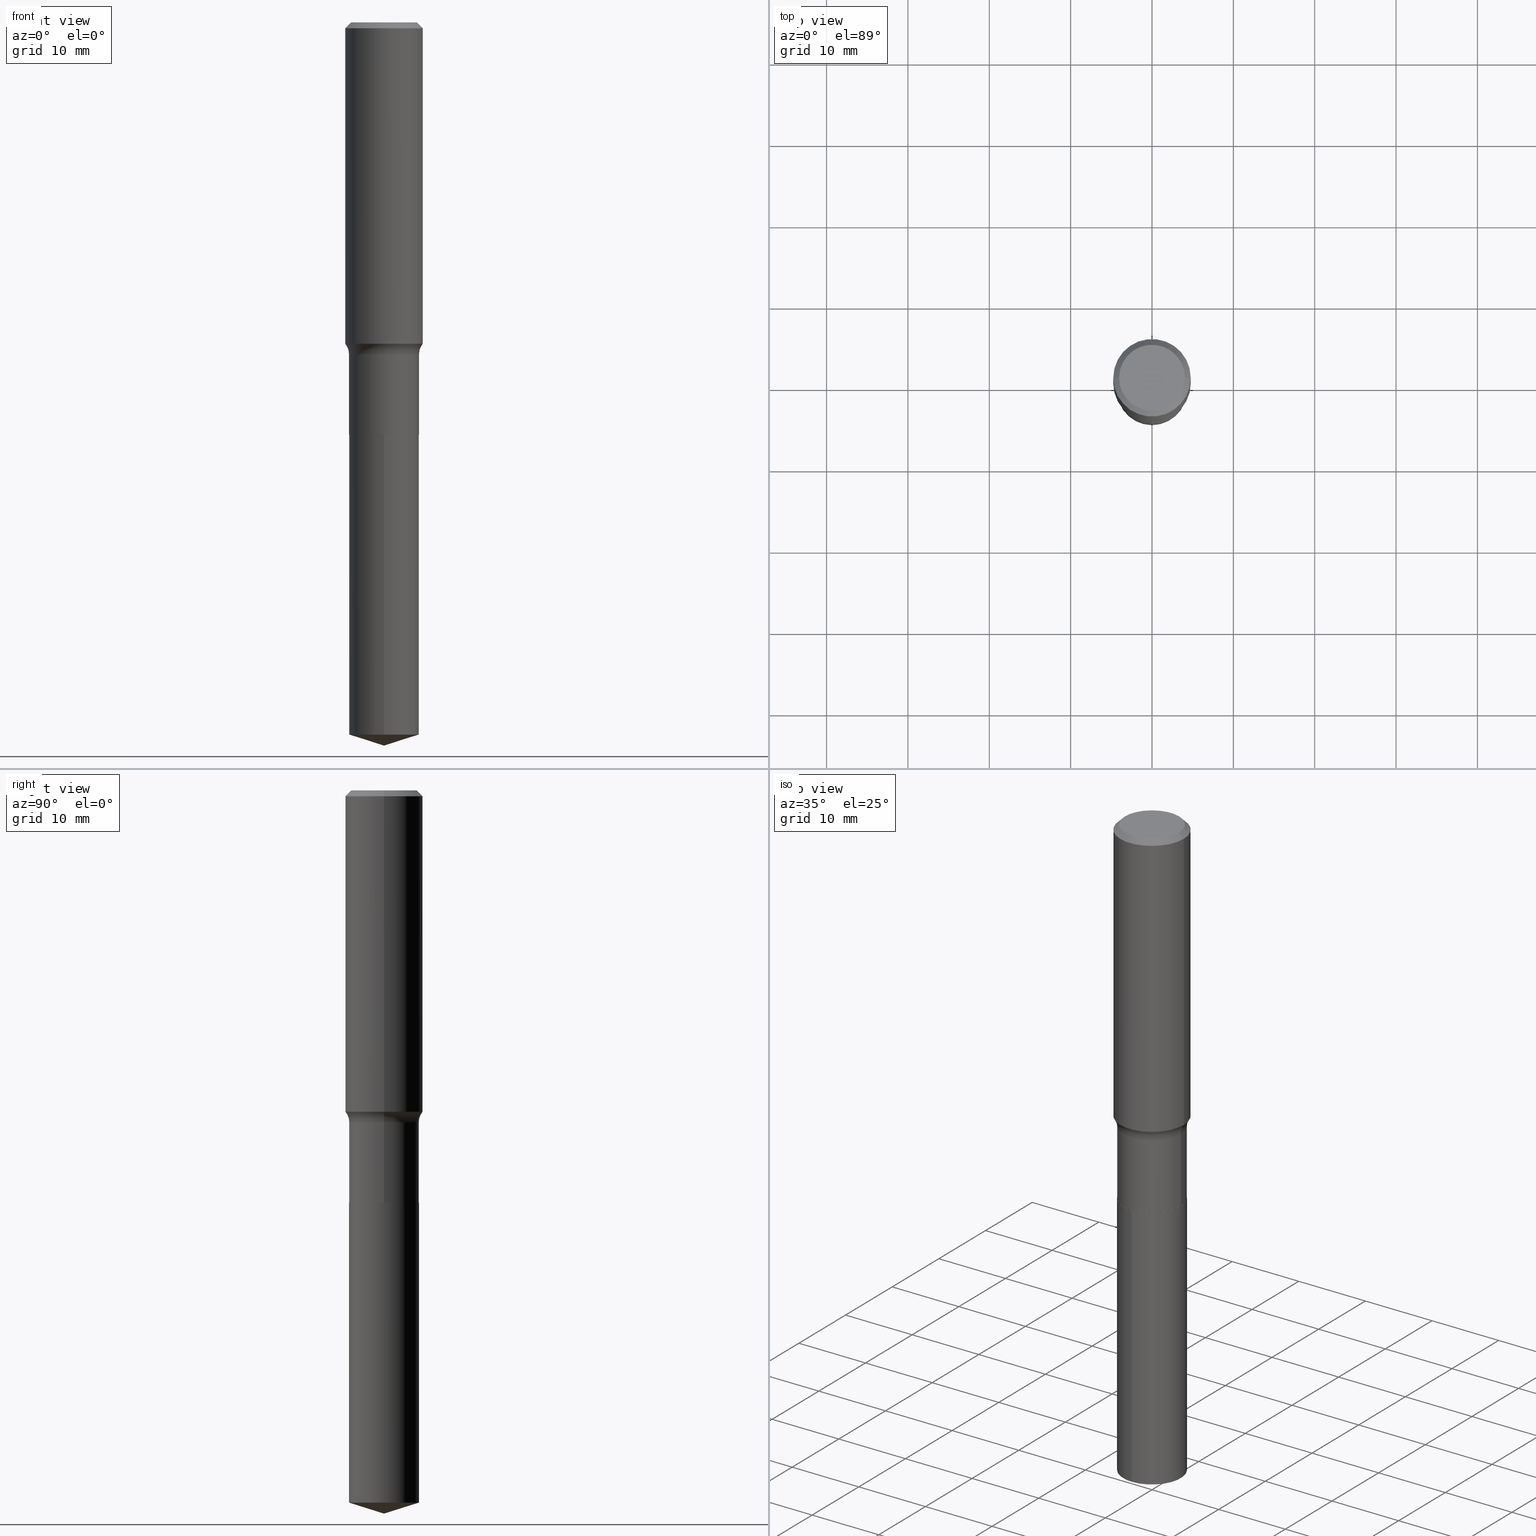
[diagram: canonical four-view strip — front | top / right | iso, engineering-drawing reading convention]
A machine part, canonical four-view strip (front | top / right | iso — engineering-drawing reading convention). The complete STEP part file that produces these views, byte-faithful:
ISO-10303-21;
HEADER;
FILE_DESCRIPTION (( 'STEP AP203' ),
    '1' );
FILE_NAME ('51615.STEP',
    '2024-04-19T13:11:08',
    ( '' ),
    ( '' ),
    'SwSTEP 2.0',
    'SolidWorks 2023',
    '' );
FILE_SCHEMA (( 'CONFIG_CONTROL_DESIGN' ));
ENDSEC;

DATA;
#1 = CARTESIAN_POINT ( 'NONE',  ( 3.803829537320122674E-29, -5.430860460007894106E-15, -1.555460256822491116 ) ) ;
#2 = EDGE_CURVE ( 'NONE', #140, #462, #276, .T. ) ;
#3 = DIRECTION ( 'NONE',  ( 1.000000000000000000, -6.982962677686264344E-15, 0.000000000000000000 ) ) ;
#4 = CARTESIAN_POINT ( 'NONE',  ( 0.2474999999999999423, -7.333158255972251092E-15, -1.605299999999999727 ) ) ;
#5 = CC_DESIGN_SECURITY_CLASSIFICATION ( #161, ( #416 ) ) ;
#6 = ORIENTED_EDGE ( 'NONE', *, *, #2, .F. ) ;
#7 = ADVANCED_FACE ( 'NONE', ( #136 ), #286, .T. ) ;
#8 = CARTESIAN_POINT ( 'NONE',  ( 4.879199362100584429E-29, -6.966203567259843153E-15, -1.995199999999999863 ) ) ;
#9 = CARTESIAN_POINT ( 'NONE',  ( 0.1694999999999999840, -8.148070000458243668E-15, -1.994699999999999918 ) ) ;
#10 = ORIENTED_EDGE ( 'NONE', *, *, #74, .F. ) ;
#11 = DIRECTION ( 'NONE',  ( -2.445235242980929493E-29, 3.491815814645162055E-15, 1.000000000000000000 ) ) ;
#12 = AXIS2_PLACEMENT_3D ( 'NONE', #57, #13, #393 ) ;
#13 = DIRECTION ( 'NONE',  ( -2.445468806185136597E-29, 3.491481338843145583E-15, 1.000000000000000000 ) ) ;
#14 = ORIENTED_EDGE ( 'NONE', *, *, #321, .T. ) ;
#15 = EDGE_CURVE ( 'NONE', #315, #23, #280, .T. ) ;
#16 = APPLICATION_PROTOCOL_DEFINITION ( 'international standard', 'config_control_design', 1994, #69 ) ;
#17 = ORIENTED_EDGE ( 'NONE', *, *, #21, .F. ) ;
#18 = EDGE_CURVE ( 'NONE', #23, #283, #263, .T. ) ;
#19 = ORIENTED_EDGE ( 'NONE', *, *, #107, .F. ) ;
#20 = CIRCLE ( 'NONE', #160, 0.1694999999999999563 ) ;
#21 = EDGE_CURVE ( 'NONE', #166, #114, #42, .T. ) ;
#22 =( NAMED_UNIT ( * ) SI_UNIT ( $, .STERADIAN. ) SOLID_ANGLE_UNIT ( ) );
#23 = VERTEX_POINT ( 'NONE', #467 ) ;
#24 = DIRECTION ( 'NONE',  ( -2.445468806185136597E-29, 3.491481338843145583E-15, 1.000000000000000000 ) ) ;
#25 = PERSON_AND_ORGANIZATION ( #359, #264 ) ;
#26 = DIRECTION ( 'NONE',  ( 0.7071067811865457964, -7.319954787623249734E-15, -0.7071067811865492381 ) ) ;
#27 = APPLICATION_PROTOCOL_DEFINITION ( 'international standard', 'config_control_design', 1994, #423 ) ;
#28 = CARTESIAN_POINT ( 'NONE',  ( -0.1875000000000001943, -4.098592830457705468E-15, -1.555460256822491116 ) ) ;
#29 = EDGE_CURVE ( 'NONE', #140, #23, #426, .T. ) ;
#30 = COORDINATED_UNIVERSAL_TIME_OFFSET ( 5, 0, .BEHIND. ) ;
#31 = CYLINDRICAL_SURFACE ( 'NONE', #170, 0.1694999999999999840 ) ;
#32 = ORIENTED_EDGE ( 'NONE', *, *, #364, .F. ) ;
#33 = COORDINATED_UNIVERSAL_TIME_OFFSET ( 5, 0, .BEHIND. ) ;
#34 = CARTESIAN_POINT ( 'NONE',  ( 4.879199362100584429E-29, -6.966203567259843153E-15, -1.995199999999999863 ) ) ;
#35 = ORIENTED_EDGE ( 'NONE', *, *, #223, .F. ) ;
#36 = AXIS2_PLACEMENT_3D ( 'NONE', #67, #258, #331 ) ;
#37 = CIRCLE ( 'NONE', #369, 0.1694999999999999563 ) ;
#38 = DIRECTION ( 'NONE',  ( -2.445468806185136877E-29, 3.491481338843145188E-15, 1.000000000000000000 ) ) ;
#39 = DIRECTION ( 'NONE',  ( 1.000000000000000000, -6.982962677686264344E-15, 0.000000000000000000 ) ) ;
#40 = DIRECTION ( 'NONE',  ( -6.982962677686266711E-15, -1.000000000000000000, 3.491481338843145583E-15 ) ) ;
#41 = EDGE_CURVE ( 'NONE', #349, #462, #20, .T. ) ;
#42 = CIRCLE ( 'NONE', #91, 0.1694999999999999840 ) ;
#43 = CARTESIAN_POINT ( 'NONE',  ( 8.428108294785469424E-29, -1.203407438723772024E-14, -3.446556855285012322 ) ) ;
#44 = APPROVAL_PERSON_ORGANIZATION ( #404, #299, #401 ) ;
#45 = ORIENTED_EDGE ( 'NONE', *, *, #409, .T. ) ;
#46 = DIRECTION ( 'NONE',  ( 1.000000000000000000, -6.982962677686264344E-15, 0.000000000000000000 ) ) ;
#47 = ORIENTED_EDGE ( 'NONE', *, *, #74, .T. ) ;
#48 = EDGE_CURVE ( 'NONE', #166, #372, #442, .T. ) ;
#49 = CARTESIAN_POINT ( 'NONE',  ( 4.879199362100584429E-29, -6.966203567259843153E-15, -1.995199999999999863 ) ) ;
#50 = DIRECTION ( 'NONE',  ( 1.000000000000000000, -6.982962677686264344E-15, 0.000000000000000000 ) ) ;
#51 = AXIS2_PLACEMENT_3D ( 'NONE', #309, #162, #230 ) ;
#52 = ORIENTED_EDGE ( 'NONE', *, *, #385, .T. ) ;
#53 = CC_DESIGN_APPROVAL ( #181, ( #416 ) ) ;
#54 = ORIENTED_EDGE ( 'NONE', *, *, #15, .T. ) ;
#55 = DIRECTION ( 'NONE',  ( -0.7071067811866199593, 7.493145998870616062E-15, 0.7071067811864750752 ) ) ;
#56 = ORIENTED_EDGE ( 'NONE', *, *, #29, .F. ) ;
#57 = CARTESIAN_POINT ( 'NONE',  ( 6.877881017395745374E-31, -9.819791265496414867E-17, -0.02812500000000019498 ) ) ;
#58 = CARTESIAN_POINT ( 'NONE',  ( 6.877881017395745374E-31, -9.819791265496414867E-17, -0.02812500000000019498 ) ) ;
#59 = CALENDAR_DATE ( 2024, 19, 4 ) ;
#60 = CARTESIAN_POINT ( 'NONE',  ( 0.1875000000000000555, -1.384541287237126871E-15, -0.02812500000000019498 ) ) ;
#61 = APPROVAL_STATUS ( 'not_yet_approved' ) ;
#62 = LINE ( 'NONE', #371, #429 ) ;
#63 = CARTESIAN_POINT ( 'NONE',  ( -7.955031918821655674E-47, 1.135767727816384611E-32, 3.252968060235159768E-18 ) ) ;
#64 = AXIS2_PLACEMENT_3D ( 'NONE', #156, #405, #328 ) ;
#65 = CIRCLE ( 'NONE', #449, 0.1694999999999999840 ) ;
#66 = COORDINATED_UNIVERSAL_TIME_OFFSET ( 5, 0, .BEHIND. ) ;
#67 = CARTESIAN_POINT ( 'NONE',  ( 3.925711074568998551E-29, -5.604874993244900239E-15, -1.605299999999999727 ) ) ;
#68 = ORIENTED_EDGE ( 'NONE', *, *, #18, .T. ) ;
#69 = APPLICATION_CONTEXT ( 'configuration controlled 3d designs of mechanical parts and assemblies' ) ;
#70 = DATE_TIME_ROLE ( 'creation_date' ) ;
#71 = DIRECTION ( 'NONE',  ( -2.445235242980929493E-29, 3.491815814645162055E-15, 1.000000000000000000 ) ) ;
#72 = CARTESIAN_POINT ( 'NONE',  ( 0.1875000000000001110, -1.309305502066175797E-15, 9.142831454617385217E-30 ) ) ;
#73 = AXIS2_PLACEMENT_3D ( 'NONE', #49, #435, #97 ) ;
#74 = EDGE_CURVE ( 'NONE', #410, #140, #307, .T. ) ;
#75 = CIRCLE ( 'NONE', #12, 0.1875000000000000555 ) ;
#76 = CARTESIAN_POINT ( 'NONE',  ( 4.879199362100584429E-29, -6.966203567259843153E-15, -1.995199999999999863 ) ) ;
#77 = CARTESIAN_POINT ( 'NONE',  ( -8.771031469862902638E-28, 1.252523755635692779E-13, 35.87007874015748143 ) ) ;
#78 = CARTESIAN_POINT ( 'NONE',  ( 0.1875000000000000555, -1.407503414721139514E-15, -0.02812500000000019498 ) ) ;
#79 = UNCERTAINTY_MEASURE_WITH_UNIT (LENGTH_MEASURE( 1.000000000000000082E-05 ), #471, 'distance_accuracy_value', 'NONE');
#80 = EDGE_LOOP ( 'NONE', ( #237, #475, #436, #124 ) ) ;
#81 = AXIS2_PLACEMENT_3D ( 'NONE', #456, #420, #454 ) ;
#82 = DIRECTION ( 'NONE',  ( 1.000000000000000000, -6.982962677686274599E-15, 0.000000000000000000 ) ) ;
#83 = AXIS2_PLACEMENT_3D ( 'NONE', #76, #347, #343 ) ;
#84 = ORIENTED_EDGE ( 'NONE', *, *, #128, .T. ) ;
#85 = ORIENTED_EDGE ( 'NONE', *, *, #281, .T. ) ;
#86 = EDGE_CURVE ( 'NONE', #451, #462, #62, .T. ) ;
#87 = CARTESIAN_POINT ( 'NONE',  ( 0.1689999999999999836, -8.146324259788821375E-15, -1.995199999999999863 ) ) ;
#88 = CARTESIAN_POINT ( 'NONE',  ( -0.1875000000000001110, 1.332267629550188637E-15, -9.223003294227953596E-30 ) ) ;
#89 = PRODUCT_RELATED_PRODUCT_CATEGORY ( 'detail', '', ( #167 ) ) ;
#90 =( NAMED_UNIT ( * ) PLANE_ANGLE_UNIT ( ) SI_UNIT ( $, .RADIAN. ) );
#91 = AXIS2_PLACEMENT_3D ( 'NONE', #351, #11, #215 ) ;
#92 = ORIENTED_EDGE ( 'NONE', *, *, #431, .F. ) ;
#93 = CARTESIAN_POINT ( 'NONE',  ( -0.1689999999999999836, -5.765386343825273561E-15, -1.995199999999999863 ) ) ;
#94 = ADVANCED_FACE ( 'NONE', ( #115 ), #31, .T. ) ;
#95 = VERTEX_POINT ( 'NONE', #450 ) ;
#96 = DIRECTION ( 'NONE',  ( 1.000000000000000000, 0.000000000000000000, 0.000000000000000000 ) ) ;
#97 = DIRECTION ( 'NONE',  ( -6.982962677686265922E-15, -1.000000000000000000, 3.223419461550753343E-15 ) ) ;
#98 = APPROVAL_STATUS ( 'not_yet_approved' ) ;
#99 = ORIENTED_EDGE ( 'NONE', *, *, #223, .T. ) ;
#100 = AXIS2_PLACEMENT_3D ( 'NONE', #278, #317, #473 ) ;
#101 = PERSON_AND_ORGANIZATION_ROLE ( 'creator' ) ;
#102 = FACE_OUTER_BOUND ( 'NONE', #240, .T. ) ;
#103 = ADVANCED_FACE ( 'NONE', ( #189 ), #108, .T. ) ;
#104 = CARTESIAN_POINT ( 'NONE',  ( 1.204369937113418216E-15, 0.1694999999999930174, -1.995200000000000307 ) ) ;
#105 = DIMENSIONAL_EXPONENTS ( 1.000000000000000000, 0.000000000000000000, 0.000000000000000000, 0.000000000000000000, 0.000000000000000000, 0.000000000000000000, 0.000000000000000000 ) ;
#106 = DATE_AND_TIME ( #406, #119 ) ;
#107 = EDGE_CURVE ( 'NONE', #372, #133, #188, .T. ) ;
#108 = CYLINDRICAL_SURFACE ( 'NONE', #253, 0.1875000000000001110 ) ;
#109 = VECTOR ( 'NONE', #339, 39.37007874015748143 ) ;
#110 = ORIENTED_EDGE ( 'NONE', *, *, #128, .F. ) ;
#111 = SHAPE_DEFINITION_REPRESENTATION ( #486, #190 ) ;
#112 = FACE_OUTER_BOUND ( 'NONE', #205, .T. ) ;
#113 = EDGE_CURVE ( 'NONE', #334, #349, #262, .T. ) ;
#114 = VERTEX_POINT ( 'NONE', #367 ) ;
#115 = FACE_OUTER_BOUND ( 'NONE', #298, .T. ) ;
#116 = MANIFOLD_SOLID_BREP ( 'Body-Move/Copy2[1]', #202 ) ;
#117 = DIRECTION ( 'NONE',  ( 1.000000000000000000, -6.982962677686265922E-15, 0.000000000000000000 ) ) ;
#118 = AXIS2_PLACEMENT_3D ( 'NONE', #58, #255, #208 ) ;
#119 = LOCAL_TIME ( 9, 11, 8.000000000000000000, #363 ) ;
#120 = DIRECTION ( 'NONE',  ( -2.445468806185136597E-29, 3.491481338843145583E-15, 1.000000000000000000 ) ) ;
#121 = DIRECTION ( 'NONE',  ( -6.982962677686265922E-15, -1.000000000000000000, 3.223419461550753343E-15 ) ) ;
#122 = ORIENTED_EDGE ( 'NONE', *, *, #48, .T. ) ;
#123 = DIRECTION ( 'NONE',  ( -2.445235242980929493E-29, 3.491815814645162055E-15, 1.000000000000000000 ) ) ;
#124 = ORIENTED_EDGE ( 'NONE', *, *, #453, .F. ) ;
#125 = CONICAL_SURFACE ( 'NONE', #81, 0.1875000000000000555, 0.7853981633974458365 ) ;
#126 = LINE ( 'NONE', #326, #293 ) ;
#127 = ORIENTED_EDGE ( 'NONE', *, *, #86, .F. ) ;
#128 = EDGE_CURVE ( 'NONE', #214, #315, #284, .T. ) ;
#129 = MANIFOLD_SOLID_BREP ( 'Body-Move/Copy2[2]', #455 ) ;
#130 = CARTESIAN_POINT ( 'NONE',  ( 0.1875000000000001943, -6.740165962074070691E-15, -1.555460256822491116 ) ) ;
#131 = ORIENTED_EDGE ( 'NONE', *, *, #2, .T. ) ;
#132 = DIRECTION ( 'NONE',  ( -2.438088387897960049E-29, 3.491481338843145188E-15, 1.000000000000000000 ) ) ;
#133 = VERTEX_POINT ( 'NONE', #374 ) ;
#134 =( LENGTH_UNIT ( ) NAMED_UNIT ( * ) SI_UNIT ( $, .METRE. ) );
#135 = VECTOR ( 'NONE', #26, 39.37007874015748143 ) ;
#136 = FACE_OUTER_BOUND ( 'NONE', #476, .T. ) ;
#137 = VECTOR ( 'NONE', #178, 39.37007874015748143 ) ;
#138 = PRODUCT_DEFINITION ( 'UNKNOWN', '', #416, #355 ) ;
#139 = DIRECTION ( 'NONE',  ( 1.000000000000000000, -6.982962677686265922E-15, 4.876176775795935793E-29 ) ) ;
#140 = VERTEX_POINT ( 'NONE', #28 ) ;
#141 = EDGE_LOOP ( 'NONE', ( #394, #183 ) ) ;
#142 = APPROVAL_DATE_TIME ( #184, #299 ) ;
#143 = CARTESIAN_POINT ( 'NONE',  ( 0.1689999999999999836, -8.146324259788821375E-15, -1.995199999999999863 ) ) ;
#144 = AXIS2_PLACEMENT_3D ( 'NONE', #350, #434, #96 ) ;
#145 = ADVANCED_FACE ( 'NONE', ( #102 ), #193, .T. ) ;
#146 = CALENDAR_DATE ( 2024, 19, 4 ) ;
#147 = DIRECTION ( 'NONE',  ( -2.445468806185136877E-29, 3.491481338843145188E-15, 1.000000000000000000 ) ) ;
#148 = PERSON_AND_ORGANIZATION ( #359, #264 ) ;
#149 = LINE ( 'NONE', #60, #135 ) ;
#150 = ORIENTED_EDGE ( 'NONE', *, *, #159, .T. ) ;
#151 = DIRECTION ( 'NONE',  ( 1.000000000000000000, -6.982962677686267499E-15, 4.883557194083113462E-29 ) ) ;
#152 = AXIS2_PLACEMENT_3D ( 'NONE', #77, #123, #157 ) ;
#153 = VECTOR ( 'NONE', #55, 39.37007874015748143 ) ;
#154 = VERTEX_POINT ( 'NONE', #143 ) ;
#155 = AXIS2_PLACEMENT_3D ( 'NONE', #4, #40, #82 ) ;
#156 = CARTESIAN_POINT ( 'NONE',  ( 4.879199362100584429E-29, -6.966203567259843153E-15, -1.995199999999999863 ) ) ;
#157 = DIRECTION ( 'NONE',  ( -6.982962677686265133E-15, -1.000000000000000000, 3.500519750498718237E-15 ) ) ;
#158 = DIRECTION ( 'NONE',  ( -2.445235242980929493E-29, 3.491815814645162055E-15, 1.000000000000000000 ) ) ;
#159 = EDGE_CURVE ( 'NONE', #214, #283, #149, .T. ) ;
#160 = AXIS2_PLACEMENT_3D ( 'NONE', #295, #365, #304 ) ;
#161 = SECURITY_CLASSIFICATION ( '', '', #366 ) ;
#162 = DIRECTION ( 'NONE',  ( 2.445468806185136597E-29, -3.491481338843145583E-15, -1.000000000000000000 ) ) ;
#163 = CC_DESIGN_DATE_AND_TIME_ASSIGNMENT ( #259, #329, ( #161 ) ) ;
#164 = ADVANCED_FACE ( 'NONE', ( #294 ), #338, .F. ) ;
#165 = FACE_OUTER_BOUND ( 'NONE', #290, .T. ) ;
#166 = VERTEX_POINT ( 'NONE', #482 ) ;
#167 = PRODUCT ( '51615', '51615', '', ( #175 ) ) ;
#168 = LINE ( 'NONE', #72, #277 ) ;
#169 = ORIENTED_EDGE ( 'NONE', *, *, #15, .F. ) ;
#170 = AXIS2_PLACEMENT_3D ( 'NONE', #260, #411, #228 ) ;
#171 = AXIS2_PLACEMENT_3D ( 'NONE', #417, #376, #458 ) ;
#172 = FACE_OUTER_BOUND ( 'NONE', #141, .T. ) ;
#173 = ORIENTED_EDGE ( 'NONE', *, *, #29, .T. ) ;
#174 = ORIENTED_EDGE ( 'NONE', *, *, #474, .T. ) ;
#175 = MECHANICAL_CONTEXT ( 'NONE', #69, 'mechanical' ) ;
#176 = CARTESIAN_POINT ( 'NONE',  ( -0.2474999999999999423, -3.846281722238652689E-15, -1.605299999999999727 ) ) ;
#177 = ADVANCED_FACE ( 'NONE', ( #112 ), #187, .T. ) ;
#178 = DIRECTION ( 'NONE',  ( -6.659769872151629722E-15, -0.9537169507482263775, 0.3007057995042748955 ) ) ;
#179 = AXIS2_PLACEMENT_3D ( 'NONE', #217, #408, #445 ) ;
#180 = DIRECTION ( 'NONE',  ( 7.105427357601001859E-15, 1.000000000000000000, -3.491481338843145583E-15 ) ) ;
#181 = APPROVAL ( #61, 'UNSPECIFIED' ) ;
#182 = CARTESIAN_POINT ( 'NONE',  ( -7.955031918821655674E-47, 1.135767727816384611E-32, 3.252968060235159768E-18 ) ) ;
#183 = ORIENTED_EDGE ( 'NONE', *, *, #437, .F. ) ;
#184 = DATE_AND_TIME ( #59, #353 ) ;
#185 = DIRECTION ( 'NONE',  ( 1.000000000000000000, -6.982962677686266711E-15, 4.876176775795935793E-29 ) ) ;
#186 = PERSON_AND_ORGANIZATION_ROLE ( 'classification_officer' ) ;
#187 = CYLINDRICAL_SURFACE ( 'NONE', #179, 0.1875000000000001110 ) ;
#188 = CIRCLE ( 'NONE', #64, 0.1694999999999999840 ) ;
#189 = FACE_OUTER_BOUND ( 'NONE', #382, .T. ) ;
#190 = ADVANCED_BREP_SHAPE_REPRESENTATION ( '51615', ( #116, #129, #144 ), #439 ) ;
#191 = ADVANCED_FACE ( 'NONE', ( #492 ), #383, .F. ) ;
#192 = DATE_AND_TIME ( #261, #457 ) ;
#193 = CYLINDRICAL_SURFACE ( 'NONE', #209, 0.1694999999999999840 ) ;
#194 = ORIENTED_EDGE ( 'NONE', *, *, #335, .F. ) ;
#195 = DIRECTION ( 'NONE',  ( -6.982962677686265922E-15, -1.000000000000000000, 3.223419461550753343E-15 ) ) ;
#196 = CIRCLE ( 'NONE', #352, 0.1694999999999999840 ) ;
#197 = DIRECTION ( 'NONE',  ( -2.445468806185136597E-29, 3.491481338843145583E-15, 1.000000000000000000 ) ) ;
#198 = DIRECTION ( 'NONE',  ( 1.000000000000000000, -6.982962677686268288E-15, 0.000000000000000000 ) ) ;
#199 = ADVANCED_FACE ( 'NONE', ( #225 ), #438, .T. ) ;
#200 = PLANE ( 'NONE',  #83 ) ;
#201 = ADVANCED_FACE ( 'NONE', ( #311 ), #125, .T. ) ;
#202 = CLOSED_SHELL ( 'NONE', ( #145, #216, #199, #7, #316 ) ) ;
#203 = AXIS2_PLACEMENT_3D ( 'NONE', #468, #391, #388 ) ;
#204 = CARTESIAN_POINT ( 'NONE',  ( 4.879199362100584429E-29, -6.966203567259843153E-15, -1.995199999999999863 ) ) ;
#205 = EDGE_LOOP ( 'NONE', ( #47, #173, #389, #32 ) ) ;
#206 = FACE_OUTER_BOUND ( 'NONE', #265, .T. ) ;
#207 = ORIENTED_EDGE ( 'NONE', *, *, #107, .T. ) ;
#208 = DIRECTION ( 'NONE',  ( 1.000000000000000000, -6.982962677686265922E-15, 0.000000000000000000 ) ) ;
#209 = AXIS2_PLACEMENT_3D ( 'NONE', #34, #484, #195 ) ;
#210 = APPROVAL_PERSON_ORGANIZATION ( #440, #181, #448 ) ;
#211 = CARTESIAN_POINT ( 'NONE',  ( -0.1694999999999999840, -5.080296472804291637E-15, -1.994699999999999918 ) ) ;
#212 = ORIENTED_EDGE ( 'NONE', *, *, #321, .F. ) ;
#213 = EDGE_LOOP ( 'NONE', ( #35, #131, #14, #243 ) ) ;
#214 = VERTEX_POINT ( 'NONE', #273 ) ;
#215 = DIRECTION ( 'NONE',  ( -6.982962677686265922E-15, -1.000000000000000000, 3.223419461550753343E-15 ) ) ;
#216 = ADVANCED_FACE ( 'NONE', ( #312 ), #421, .T. ) ;
#217 = CARTESIAN_POINT ( 'NONE',  ( 0.000000000000000000, 0.000000000000000000, 0.000000000000000000 ) ) ;
#218 = CC_DESIGN_DATE_AND_TIME_ASSIGNMENT ( #192, #70, ( #138 ) ) ;
#219 = PERSON_AND_ORGANIZATION_ROLE ( 'design_supplier' ) ;
#220 = CARTESIAN_POINT ( 'NONE',  ( 0.000000000000000000, 0.000000000000000000, 0.000000000000000000 ) ) ;
#221 = CALENDAR_DATE ( 2024, 19, 4 ) ;
#222 = DIRECTION ( 'NONE',  ( 1.000000000000000000, -6.982962677686265922E-15, 0.000000000000000000 ) ) ;
#223 = EDGE_CURVE ( 'NONE', #140, #410, #490, .T. ) ;
#224 = AXIS2_PLACEMENT_3D ( 'NONE', #466, #132, #139 ) ;
#225 = FACE_OUTER_BOUND ( 'NONE', #375, .T. ) ;
#226 = ORIENTED_EDGE ( 'NONE', *, *, #437, .T. ) ;
#227 = PERSON_AND_ORGANIZATION ( #359, #264 ) ;
#228 = DIRECTION ( 'NONE',  ( 1.000000000000000000, -6.982962677686267499E-15, 4.876176775795935793E-29 ) ) ;
#229 = ORIENTED_EDGE ( 'NONE', *, *, #453, .T. ) ;
#230 = DIRECTION ( 'NONE',  ( -1.000000000000000000, 6.982962677686265922E-15, 0.000000000000000000 ) ) ;
#231 = CONICAL_SURFACE ( 'NONE', #291, 0.1689999999999999836, 0.7853981633975507526 ) ;
#232 = CIRCLE ( 'NONE', #345, 0.1689999999999999836 ) ;
#233 = ADVANCED_FACE ( 'NONE', ( #379 ), #231, .T. ) ;
#234 = DIRECTION ( 'NONE',  ( -6.982962677686265922E-15, -1.000000000000000000, 3.223419461550753343E-15 ) ) ;
#235 = PLANE ( 'NONE',  #491 ) ;
#236 = DIRECTION ( 'NONE',  ( -2.445468806185136597E-29, 3.491481338843145583E-15, 1.000000000000000000 ) ) ;
#237 = ORIENTED_EDGE ( 'NONE', *, *, #380, .T. ) ;
#238 = AXIS2_PLACEMENT_3D ( 'NONE', #63, #399, #370 ) ;
#239 = CARTESIAN_POINT ( 'NONE',  ( 1.204369937113453912E-15, 0.1694999999999930174, -1.995200000000000307 ) ) ;
#240 = EDGE_LOOP ( 'NONE', ( #419, #122, #464, #472 ) ) ;
#241 = APPROVAL ( #481, 'UNSPECIFIED' ) ;
#242 = DIRECTION ( 'NONE',  ( 0.7071067811866199593, -2.468850131083015945E-15, 0.7071067811864750752 ) ) ;
#243 = ORIENTED_EDGE ( 'NONE', *, *, #256, .F. ) ;
#244 = VECTOR ( 'NONE', #333, 39.37007874015748143 ) ;
#245 = EDGE_CURVE ( 'NONE', #133, #372, #196, .T. ) ;
#246 = DIRECTION ( 'NONE',  ( -2.445235242980929773E-29, 3.491815814645162055E-15, 1.000000000000000000 ) ) ;
#247 = EDGE_LOOP ( 'NONE', ( #110, #150, #174, #169 ) ) ;
#248 = DIRECTION ( 'NONE',  ( -2.445468806185136597E-29, 3.491481338843145583E-15, 1.000000000000000000 ) ) ;
#249 = EDGE_LOOP ( 'NONE', ( #324, #344, #54, #68 ) ) ;
#250 = ADVANCED_FACE ( 'NONE', ( #342 ), #268, .T. ) ;
#251 = PLANE ( 'NONE',  #224 ) ;
#252 = CARTESIAN_POINT ( 'NONE',  ( -0.1875000000000000555, 1.211107589411211094E-15, -0.02812500000000019498 ) ) ;
#253 = AXIS2_PLACEMENT_3D ( 'NONE', #220, #452, #185 ) ;
#254 = CIRCLE ( 'NONE', #313, 0.1689999999999999836 ) ;
#255 = DIRECTION ( 'NONE',  ( -2.445468806185136597E-29, 3.491481338843145583E-15, 1.000000000000000000 ) ) ;
#256 = EDGE_CURVE ( 'NONE', #410, #349, #479, .T. ) ;
#257 = APPROVAL_DATE_TIME ( #332, #181 ) ;
#258 = DIRECTION ( 'NONE',  ( -2.445468806185136597E-29, 3.491481338843145583E-15, 1.000000000000000000 ) ) ;
#259 = DATE_AND_TIME ( #146, #430 ) ;
#260 = CARTESIAN_POINT ( 'NONE',  ( 0.000000000000000000, 0.000000000000000000, 0.000000000000000000 ) ) ;
#261 = CALENDAR_DATE ( 2024, 19, 4 ) ;
#262 = LINE ( 'NONE', #478, #109 ) ;
#263 = CIRCLE ( 'NONE', #118, 0.1875000000000000555 ) ;
#264 = ORGANIZATION ( 'UNSPECIFIED', 'UNSPECIFIED', '' ) ;
#265 = EDGE_LOOP ( 'NONE', ( #358, #207 ) ) ;
#266 = CARTESIAN_POINT ( 'NONE',  ( 3.925711074568998551E-29, -5.604874993244900239E-15, -1.605299999999999727 ) ) ;
#267 = DIRECTION ( 'NONE',  ( 2.438088387897960049E-29, -3.491481338843145188E-15, -1.000000000000000000 ) ) ;
#268 = CONICAL_SURFACE ( 'NONE', #51, 0.1875000000000000555, 0.7853981633974458365 ) ;
#269 = CIRCLE ( 'NONE', #340, 0.1593749999999999889 ) ;
#270 = DIRECTION ( 'NONE',  ( -6.982962677686265133E-15, -1.000000000000000000, 3.500519750498718237E-15 ) ) ;
#271 = DIRECTION ( 'NONE',  ( -1.000000000000000000, 6.982962677686265922E-15, -4.876176775795935793E-29 ) ) ;
#272 = ORIENTED_EDGE ( 'NONE', *, *, #431, .T. ) ;
#273 = CARTESIAN_POINT ( 'NONE',  ( 0.1593749999999999889, -1.238966577815982495E-15, 3.252968060243383104E-18 ) ) ;
#274 = CC_DESIGN_PERSON_AND_ORGANIZATION_ASSIGNMENT ( #227, #292, ( #138 ) ) ;
#275 = ORIENTED_EDGE ( 'NONE', *, *, #444, .F. ) ;
#276 = CIRCLE ( 'NONE', #447, 0.07799999999999995826 ) ;
#277 = VECTOR ( 'NONE', #38, 39.37007874015748143 ) ;
#278 = CARTESIAN_POINT ( 'NONE',  ( 0.000000000000000000, 0.000000000000000000, 0.000000000000000000 ) ) ;
#279 = CARTESIAN_POINT ( 'NONE',  ( 8.559263533676220325E-29, -1.222002065901769936E-14, -3.500000000000000000 ) ) ;
#280 = LINE ( 'NONE', #252, #368 ) ;
#281 = EDGE_CURVE ( 'NONE', #451, #334, #384, .T. ) ;
#282 = DIRECTION ( 'NONE',  ( -2.445468806185136597E-29, 3.491481338843145583E-15, 1.000000000000000000 ) ) ;
#283 = VERTEX_POINT ( 'NONE', #78 ) ;
#284 = CIRCLE ( 'NONE', #238, 0.1593749999999999889 ) ;
#285 = FACE_OUTER_BOUND ( 'NONE', #428, .T. ) ;
#286 = CYLINDRICAL_SURFACE ( 'NONE', #73, 0.1694999999999999840 ) ;
#287 = CYLINDRICAL_SURFACE ( 'NONE', #100, 0.1694999999999999840 ) ;
#288 = ADVANCED_FACE ( 'NONE', ( #306 ), #235, .F. ) ;
#289 = ORIENTED_EDGE ( 'NONE', *, *, #281, .F. ) ;
#290 = EDGE_LOOP ( 'NONE', ( #275, #226, #229, #289 ) ) ;
#291 = AXIS2_PLACEMENT_3D ( 'NONE', #8, #381, #3 ) ;
#292 = PERSON_AND_ORGANIZATION_ROLE ( 'creator' ) ;
#293 = VECTOR ( 'NONE', #246, 39.37007874015748143 ) ;
#294 = FACE_OUTER_BOUND ( 'NONE', #213, .T. ) ;
#295 = CARTESIAN_POINT ( 'NONE',  ( 3.925711074568998551E-29, -5.604874993244900239E-15, -1.605299999999999727 ) ) ;
#296 = APPROVAL_ROLE ( '' ) ;
#297 = CARTESIAN_POINT ( 'NONE',  ( 3.803829537320122674E-29, -5.430860460007894106E-15, -1.555460256822491116 ) ) ;
#298 = EDGE_LOOP ( 'NONE', ( #360, #318, #424, #412 ) ) ;
#299 = APPROVAL ( #98, 'UNSPECIFIED' ) ;
#300 = PERSON_AND_ORGANIZATION ( #359, #264 ) ;
#301 = CARTESIAN_POINT ( 'NONE',  ( -8.771031469862902638E-28, 1.252523755635692779E-13, 35.87007874015748143 ) ) ;
#302 = AXIS2_PLACEMENT_3D ( 'NONE', #336, #488, #151 ) ;
#303 = ORIENTED_EDGE ( 'NONE', *, *, #41, .T. ) ;
#304 = DIRECTION ( 'NONE',  ( 1.000000000000000000, -6.982962677686268288E-15, 0.000000000000000000 ) ) ;
#305 = CARTESIAN_POINT ( 'NONE',  ( -0.1689999999999999836, -5.762737116651162360E-15, -1.995199999999999863 ) ) ;
#306 = FACE_OUTER_BOUND ( 'NONE', #489, .T. ) ;
#307 = CIRCLE ( 'NONE', #320, 0.1875000000000001943 ) ;
#308 = LOCAL_TIME ( 9, 11, 8.000000000000000000, #66 ) ;
#309 = CARTESIAN_POINT ( 'NONE',  ( 6.877881017395745374E-31, -9.819791265496414867E-17, -0.02812500000000019498 ) ) ;
#310 = ORIENTED_EDGE ( 'NONE', *, *, #400, .T. ) ;
#311 = FACE_OUTER_BOUND ( 'NONE', #249, .T. ) ;
#312 = FACE_OUTER_BOUND ( 'NONE', #469, .T. ) ;
#313 = AXIS2_PLACEMENT_3D ( 'NONE', #204, #120, #46 ) ;
#314 = CARTESIAN_POINT ( 'NONE',  ( 4.879199362100584429E-29, -6.966203567259843153E-15, -1.995199999999999863 ) ) ;
#315 = VERTEX_POINT ( 'NONE', #378 ) ;
#316 = ADVANCED_FACE ( 'NONE', ( #206 ), #200, .F. ) ;
#317 = DIRECTION ( 'NONE',  ( -2.445468806185136597E-29, 3.491481338843145583E-15, 1.000000000000000000 ) ) ;
#318 = ORIENTED_EDGE ( 'NONE', *, *, #86, .T. ) ;
#319 = ORIENTED_EDGE ( 'NONE', *, *, #48, .F. ) ;
#320 = AXIS2_PLACEMENT_3D ( 'NONE', #297, #24, #222 ) ;
#321 = EDGE_CURVE ( 'NONE', #462, #349, #37, .T. ) ;
#322 = CC_DESIGN_APPROVAL ( #299, ( #138 ) ) ;
#323 = LINE ( 'NONE', #87, #422 ) ;
#324 = ORIENTED_EDGE ( 'NONE', *, *, #159, .F. ) ;
#325 = CC_DESIGN_PERSON_AND_ORGANIZATION_ASSIGNMENT ( #477, #443, ( #167 ) ) ;
#326 = CARTESIAN_POINT ( 'NONE',  ( -1.183612173867773306E-15, -0.1695000000000069507, -1.995199999999999196 ) ) ;
#327 = ORIENTED_EDGE ( 'NONE', *, *, #18, .F. ) ;
#328 = DIRECTION ( 'NONE',  ( -6.982962677686265922E-15, -1.000000000000000000, 3.223419461550753343E-15 ) ) ;
#329 = DATE_TIME_ROLE ( 'classification_date' ) ;
#330 = APPROVAL_PERSON_ORGANIZATION ( #148, #241, #296 ) ;
#331 = DIRECTION ( 'NONE',  ( 1.000000000000000000, -6.982962677686267499E-15, 4.883557194083113462E-29 ) ) ;
#332 = DATE_AND_TIME ( #221, #308 ) ;
#333 = DIRECTION ( 'NONE',  ( -2.445235242980929773E-29, 3.491815814645162055E-15, 1.000000000000000000 ) ) ;
#334 = VERTEX_POINT ( 'NONE', #9 ) ;
#335 = EDGE_CURVE ( 'NONE', #114, #166, #65, .T. ) ;
#336 = CARTESIAN_POINT ( 'NONE',  ( 3.925711074568998551E-29, -5.604874993244900239E-15, -1.605299999999999727 ) ) ;
#337 = ORIENTED_EDGE ( 'NONE', *, *, #113, .T. ) ;
#338 = TOROIDAL_SURFACE ( 'NONE', #36, 0.2474999999999999423, 0.07799999999999997213 ) ;
#339 = DIRECTION ( 'NONE',  ( -2.445468806185136877E-29, 3.491481338843145188E-15, 1.000000000000000000 ) ) ;
#340 = AXIS2_PLACEMENT_3D ( 'NONE', #182, #282, #354 ) ;
#341 = CARTESIAN_POINT ( 'NONE',  ( 0.1694999999999999563, -6.788487167112723046E-15, -1.605299999999999727 ) ) ;
#342 = FACE_OUTER_BOUND ( 'NONE', #247, .T. ) ;
#343 = DIRECTION ( 'NONE',  ( 6.982962677686265922E-15, 1.000000000000000000, -3.491815814645162055E-15 ) ) ;
#344 = ORIENTED_EDGE ( 'NONE', *, *, #400, .F. ) ;
#345 = AXIS2_PLACEMENT_3D ( 'NONE', #314, #248, #50 ) ;
#346 = ADVANCED_FACE ( 'NONE', ( #165 ), #465, .T. ) ;
#347 = DIRECTION ( 'NONE',  ( 2.445235242980929213E-29, -3.491815814645162055E-15, -1.000000000000000000 ) ) ;
#348 = CARTESIAN_POINT ( 'NONE',  ( -3.977515959410827837E-47, 5.678838639081923055E-33, 1.626484030117579884E-18 ) ) ;
#349 = VERTEX_POINT ( 'NONE', #341 ) ;
#350 = CARTESIAN_POINT ( 'NONE',  ( 0.000000000000000000, 0.000000000000000000, 0.000000000000000000 ) ) ;
#351 = CARTESIAN_POINT ( 'NONE',  ( 8.428108294785469424E-29, -1.203407438723772024E-14, -3.446556855285012322 ) ) ;
#352 = AXIS2_PLACEMENT_3D ( 'NONE', #415, #463, #121 ) ;
#353 = LOCAL_TIME ( 9, 11, 8.000000000000000000, #30 ) ;
#354 = DIRECTION ( 'NONE',  ( 1.000000000000000000, -6.982962677686267499E-15, 4.876227444496879000E-29 ) ) ;
#355 = DESIGN_CONTEXT ( 'detailed design', #423, 'design' ) ;
#356 = VERTEX_POINT ( 'NONE', #305 ) ;
#357 = CARTESIAN_POINT ( 'NONE',  ( -0.1694999999999999563, -5.080296472804291637E-15, -1.605299999999999727 ) ) ;
#358 = ORIENTED_EDGE ( 'NONE', *, *, #245, .T. ) ;
#359 = PERSON ( 'UNSPECIFIED', 'UNSPECIFIED', 'UNSPECIFIED', ('UNSPECIFIED'), ('UNSPECIFIED'), ('UNSPECIFIED') ) ;
#360 = ORIENTED_EDGE ( 'NONE', *, *, #470, .T. ) ;
#361 = AXIS2_PLACEMENT_3D ( 'NONE', #301, #71, #270 ) ;
#362 = EDGE_LOOP ( 'NONE', ( #6, #10, #392, #303 ) ) ;
#363 = COORDINATED_UNIVERSAL_TIME_OFFSET ( 5, 0, .BEHIND. ) ;
#364 = EDGE_CURVE ( 'NONE', #410, #283, #168, .T. ) ;
#365 = DIRECTION ( 'NONE',  ( -2.445468806185136597E-29, 3.491481338843145583E-15, 1.000000000000000000 ) ) ;
#366 = SECURITY_CLASSIFICATION_LEVEL ( 'unclassified' ) ;
#367 = CARTESIAN_POINT ( 'NONE',  ( -1.183612173867737807E-15, -0.1695000000000119744, -3.446556855285011878 ) ) ;
#368 = VECTOR ( 'NONE', #397, 39.37007874015748143 ) ;
#369 = AXIS2_PLACEMENT_3D ( 'NONE', #266, #236, #198 ) ;
#370 = DIRECTION ( 'NONE',  ( 1.000000000000000000, -6.982962677686267499E-15, 4.876227444496879000E-29 ) ) ;
#371 = CARTESIAN_POINT ( 'NONE',  ( -0.1694999999999999840, 1.204369937113369701E-15, -8.337594977982064546E-30 ) ) ;
#372 = VERTEX_POINT ( 'NONE', #239 ) ;
#373 = APPROVAL_DATE_TIME ( #106, #241 ) ;
#374 = CARTESIAN_POINT ( 'NONE',  ( -1.183612173867773306E-15, -0.1695000000000069507, -1.995199999999999196 ) ) ;
#375 = EDGE_LOOP ( 'NONE', ( #92, #52, #17 ) ) ;
#376 = DIRECTION ( 'NONE',  ( -2.445468806185136597E-29, 3.491481338843145583E-15, 1.000000000000000000 ) ) ;
#377 = CIRCLE ( 'NONE', #203, 0.1694999999999999840 ) ;
#378 = CARTESIAN_POINT ( 'NONE',  ( -0.1593749999999999889, 1.162008633083729827E-15, 3.252968060227205293E-18 ) ) ;
#379 = FACE_OUTER_BOUND ( 'NONE', #80, .T. ) ;
#380 = EDGE_CURVE ( 'NONE', #154, #356, #254, .T. ) ;
#381 = DIRECTION ( 'NONE',  ( -2.445468806185136597E-29, 3.491481338843145583E-15, 1.000000000000000000 ) ) ;
#382 = EDGE_LOOP ( 'NONE', ( #56, #99, #446, #327 ) ) ;
#383 = TOROIDAL_SURFACE ( 'NONE', #302, 0.2474999999999999423, 0.07799999999999997213 ) ;
#384 = CIRCLE ( 'NONE', #171, 0.1694999999999999840 ) ;
#385 = EDGE_CURVE ( 'NONE', #95, #114, #461, .T. ) ;
#386 = CARTESIAN_POINT ( 'NONE',  ( 8.558323350433252665E-29, -1.222135535125806700E-14, -3.500000000000000000 ) ) ;
#387 = CC_DESIGN_PERSON_AND_ORGANIZATION_ASSIGNMENT ( #300, #101, ( #416 ) ) ;
#388 = DIRECTION ( 'NONE',  ( 1.000000000000000000, -6.982962677686267499E-15, 0.000000000000000000 ) ) ;
#389 = ORIENTED_EDGE ( 'NONE', *, *, #474, .F. ) ;
#390 = CC_DESIGN_APPROVAL ( #241, ( #161 ) ) ;
#391 = DIRECTION ( 'NONE',  ( -2.445468806185136597E-29, 3.491481338843145583E-15, 1.000000000000000000 ) ) ;
#392 = ORIENTED_EDGE ( 'NONE', *, *, #256, .T. ) ;
#393 = DIRECTION ( 'NONE',  ( 1.000000000000000000, -6.982962677686265922E-15, 0.000000000000000000 ) ) ;
#394 = ORIENTED_EDGE ( 'NONE', *, *, #380, .F. ) ;
#395 = ADVANCED_FACE ( 'NONE', ( #172 ), #251, .F. ) ;
#396 = DIRECTION ( 'NONE',  ( 6.776566513254254982E-15, 0.9537169507482283759, 0.3007057995042682341 ) ) ;
#397 = DIRECTION ( 'NONE',  ( -0.7071067811865457964, 2.468850131082238917E-15, -0.7071067811865492381 ) ) ;
#398 = AXIS2_PLACEMENT_3D ( 'NONE', #1, #418, #117 ) ;
#399 = DIRECTION ( 'NONE',  ( -2.445468806185136597E-29, 3.491481338843145583E-15, 1.000000000000000000 ) ) ;
#400 = EDGE_CURVE ( 'NONE', #315, #214, #269, .T. ) ;
#401 = APPROVAL_ROLE ( '' ) ;
#402 = DIRECTION ( 'NONE',  ( -2.445468806185136877E-29, 3.491481338843145188E-15, 1.000000000000000000 ) ) ;
#403 = CC_DESIGN_PERSON_AND_ORGANIZATION_ASSIGNMENT ( #25, #186, ( #161 ) ) ;
#404 = PERSON_AND_ORGANIZATION ( #359, #264 ) ;
#405 = DIRECTION ( 'NONE',  ( -2.445235242980929493E-29, 3.491815814645162055E-15, 1.000000000000000000 ) ) ;
#406 = CALENDAR_DATE ( 2024, 19, 4 ) ;
#407 = AXIS2_PLACEMENT_3D ( 'NONE', #413, #197, #39 ) ;
#408 = DIRECTION ( 'NONE',  ( -2.445468806185136597E-29, 3.491481338843145583E-15, 1.000000000000000000 ) ) ;
#409 = EDGE_CURVE ( 'NONE', #114, #133, #126, .T. ) ;
#410 = VERTEX_POINT ( 'NONE', #130 ) ;
#411 = DIRECTION ( 'NONE',  ( -2.445468806185136597E-29, 3.491481338843145583E-15, 1.000000000000000000 ) ) ;
#412 = ORIENTED_EDGE ( 'NONE', *, *, #113, .F. ) ;
#413 = CARTESIAN_POINT ( 'NONE',  ( 4.879199362100584429E-29, -6.966203567259843153E-15, -1.995199999999999863 ) ) ;
#414 = VECTOR ( 'NONE', #402, 39.37007874015748143 ) ;
#415 = CARTESIAN_POINT ( 'NONE',  ( 4.879199362100584429E-29, -6.966203567259843153E-15, -1.995199999999999863 ) ) ;
#416 = PRODUCT_DEFINITION_FORMATION_WITH_SPECIFIED_SOURCE ( 'ANY', '', #167, .NOT_KNOWN. ) ;
#417 = CARTESIAN_POINT ( 'NONE',  ( 4.877976627697491628E-29, -6.964457826590421650E-15, -1.994699999999999918 ) ) ;
#418 = DIRECTION ( 'NONE',  ( -2.445468806185136597E-29, 3.491481338843145583E-15, 1.000000000000000000 ) ) ;
#419 = ORIENTED_EDGE ( 'NONE', *, *, #335, .T. ) ;
#420 = DIRECTION ( 'NONE',  ( 2.445468806185136597E-29, -3.491481338843145583E-15, -1.000000000000000000 ) ) ;
#421 = CONICAL_SURFACE ( 'NONE', #152, 124.8659371009145787, 1.265363707695890572 ) ;
#422 = VECTOR ( 'NONE', #242, 39.37007874015748143 ) ;
#423 = APPLICATION_CONTEXT ( 'configuration controlled 3d designs of mechanical parts and assemblies' ) ;
#424 = ORIENTED_EDGE ( 'NONE', *, *, #41, .F. ) ;
#425 = LINE ( 'NONE', #93, #153 ) ;
#426 = LINE ( 'NONE', #88, #414 ) ;
#427 = LENGTH_MEASURE_WITH_UNIT ( LENGTH_MEASURE( 0.02539999999999999897 ), #134 );
#428 = EDGE_LOOP ( 'NONE', ( #127, #85, #337, #212 ) ) ;
#429 = VECTOR ( 'NONE', #147, 39.37007874015748143 ) ;
#430 = LOCAL_TIME ( 9, 11, 8.000000000000000000, #33 ) ;
#431 = EDGE_CURVE ( 'NONE', #95, #166, #432, .T. ) ;
#432 = LINE ( 'NONE', #279, #480 ) ;
#433 = DIRECTION ( 'NONE',  ( -1.000000000000000000, 7.105427357601001859E-15, 0.000000000000000000 ) ) ;
#434 = DIRECTION ( 'NONE',  ( 0.000000000000000000, 0.000000000000000000, 1.000000000000000000 ) ) ;
#435 = DIRECTION ( 'NONE',  ( -2.445235242980929493E-29, 3.491815814645162055E-15, 1.000000000000000000 ) ) ;
#436 = ORIENTED_EDGE ( 'NONE', *, *, #470, .F. ) ;
#437 = EDGE_CURVE ( 'NONE', #356, #154, #232, .T. ) ;
#438 = CONICAL_SURFACE ( 'NONE', #361, 124.8659371009145787, 1.265363707695890572 ) ;
#439 =( GEOMETRIC_REPRESENTATION_CONTEXT ( 3 ) GLOBAL_UNCERTAINTY_ASSIGNED_CONTEXT ( ( #79 ) ) GLOBAL_UNIT_ASSIGNED_CONTEXT ( ( #471, #90, #22 ) ) REPRESENTATION_CONTEXT ( 'NONE', 'WORKASPACE' ) );
#440 = PERSON_AND_ORGANIZATION ( #359, #264 ) ;
#441 = CC_DESIGN_PERSON_AND_ORGANIZATION_ASSIGNMENT ( #483, #219, ( #416 ) ) ;
#442 = LINE ( 'NONE', #104, #244 ) ;
#443 = PERSON_AND_ORGANIZATION_ROLE ( 'design_owner' ) ;
#444 = EDGE_CURVE ( 'NONE', #356, #451, #425, .T. ) ;
#445 = DIRECTION ( 'NONE',  ( 1.000000000000000000, -6.982962677686266711E-15, 4.876176775795935793E-29 ) ) ;
#446 = ORIENTED_EDGE ( 'NONE', *, *, #364, .T. ) ;
#447 = AXIS2_PLACEMENT_3D ( 'NONE', #176, #180, #433 ) ;
#448 = APPROVAL_ROLE ( '' ) ;
#449 = AXIS2_PLACEMENT_3D ( 'NONE', #43, #158, #234 ) ;
#450 = CARTESIAN_POINT ( 'NONE',  ( 8.558323350433252665E-29, -1.222135535125806700E-14, -3.500000000000000000 ) ) ;
#451 = VERTEX_POINT ( 'NONE', #211 ) ;
#452 = DIRECTION ( 'NONE',  ( -2.445468806185136597E-29, 3.491481338843145583E-15, 1.000000000000000000 ) ) ;
#453 = EDGE_CURVE ( 'NONE', #154, #334, #323, .T. ) ;
#454 = DIRECTION ( 'NONE',  ( -1.000000000000000000, 6.982962677686265922E-15, 0.000000000000000000 ) ) ;
#455 = CLOSED_SHELL ( 'NONE', ( #233, #250, #177, #164, #94, #460, #191, #103, #201, #288, #395, #346 ) ) ;
#456 = CARTESIAN_POINT ( 'NONE',  ( 6.877881017395745374E-31, -9.819791265496414867E-17, -0.02812500000000019498 ) ) ;
#457 = LOCAL_TIME ( 9, 11, 8.000000000000000000, #487 ) ;
#458 = DIRECTION ( 'NONE',  ( 1.000000000000000000, -6.982962677686267499E-15, 0.000000000000000000 ) ) ;
#459 = ORIENTED_EDGE ( 'NONE', *, *, #385, .F. ) ;
#460 = ADVANCED_FACE ( 'NONE', ( #285 ), #287, .T. ) ;
#461 = LINE ( 'NONE', #386, #137 ) ;
#462 = VERTEX_POINT ( 'NONE', #357 ) ;
#463 = DIRECTION ( 'NONE',  ( -2.445235242980929493E-29, 3.491815814645162055E-15, 1.000000000000000000 ) ) ;
#464 = ORIENTED_EDGE ( 'NONE', *, *, #245, .F. ) ;
#465 = CONICAL_SURFACE ( 'NONE', #407, 0.1689999999999999836, 0.7853981633975507526 ) ;
#466 = CARTESIAN_POINT ( 'NONE',  ( 4.879199362100584429E-29, -6.966203567259843153E-15, -1.995199999999999863 ) ) ;
#467 = CARTESIAN_POINT ( 'NONE',  ( -0.1875000000000000555, -1.432261556781240274E-15, -0.02812500000000019498 ) ) ;
#468 = CARTESIAN_POINT ( 'NONE',  ( 4.877976627697491628E-29, -6.964457826590421650E-15, -1.994699999999999918 ) ) ;
#469 = EDGE_LOOP ( 'NONE', ( #459, #272, #194 ) ) ;
#470 = EDGE_CURVE ( 'NONE', #334, #451, #377, .T. ) ;
#471 =( CONVERSION_BASED_UNIT ( 'INCH', #427 ) LENGTH_UNIT ( ) NAMED_UNIT ( #105 ) );
#472 = ORIENTED_EDGE ( 'NONE', *, *, #409, .F. ) ;
#473 = DIRECTION ( 'NONE',  ( 1.000000000000000000, -6.982962677686267499E-15, 4.876176775795935793E-29 ) ) ;
#474 = EDGE_CURVE ( 'NONE', #283, #23, #75, .T. ) ;
#475 = ORIENTED_EDGE ( 'NONE', *, *, #444, .T. ) ;
#476 = EDGE_LOOP ( 'NONE', ( #319, #485, #45, #19 ) ) ;
#477 = PERSON_AND_ORGANIZATION ( #359, #264 ) ;
#478 = CARTESIAN_POINT ( 'NONE',  ( 0.1694999999999999840, -1.183612173867822215E-15, 8.265119634974110104E-30 ) ) ;
#479 = CIRCLE ( 'NONE', #155, 0.07799999999999995826 ) ;
#480 = VECTOR ( 'NONE', #396, 39.37007874015748854 ) ;
#481 = APPROVAL_STATUS ( 'not_yet_approved' ) ;
#482 = CARTESIAN_POINT ( 'NONE',  ( 1.204369937113453715E-15, 0.1694999999999879381, -3.446556855285012766 ) ) ;
#483 = PERSON_AND_ORGANIZATION ( #359, #264 ) ;
#484 = DIRECTION ( 'NONE',  ( -2.445235242980929493E-29, 3.491815814645162055E-15, 1.000000000000000000 ) ) ;
#485 = ORIENTED_EDGE ( 'NONE', *, *, #21, .T. ) ;
#486 = PRODUCT_DEFINITION_SHAPE ( 'NONE', 'NONE',  #138 ) ;
#487 = COORDINATED_UNIVERSAL_TIME_OFFSET ( 5, 0, .BEHIND. ) ;
#488 = DIRECTION ( 'NONE',  ( -2.445468806185136597E-29, 3.491481338843145583E-15, 1.000000000000000000 ) ) ;
#489 = EDGE_LOOP ( 'NONE', ( #310, #84 ) ) ;
#490 = CIRCLE ( 'NONE', #398, 0.1875000000000001943 ) ;
#491 = AXIS2_PLACEMENT_3D ( 'NONE', #348, #267, #271 ) ;
#492 = FACE_OUTER_BOUND ( 'NONE', #362, .T. ) ;
ENDSEC;
END-ISO-10303-21;
